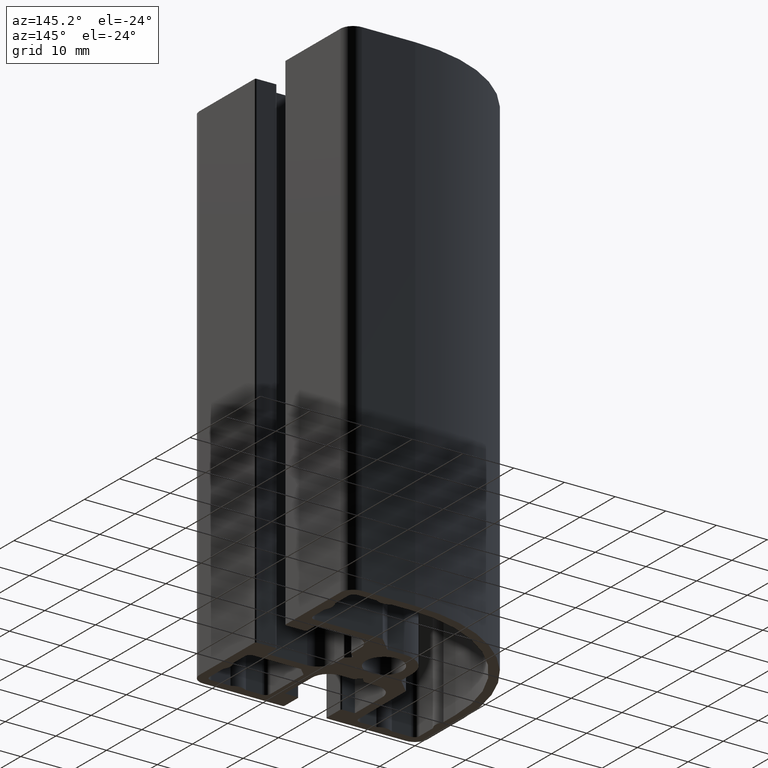
[diagram: clean part render]
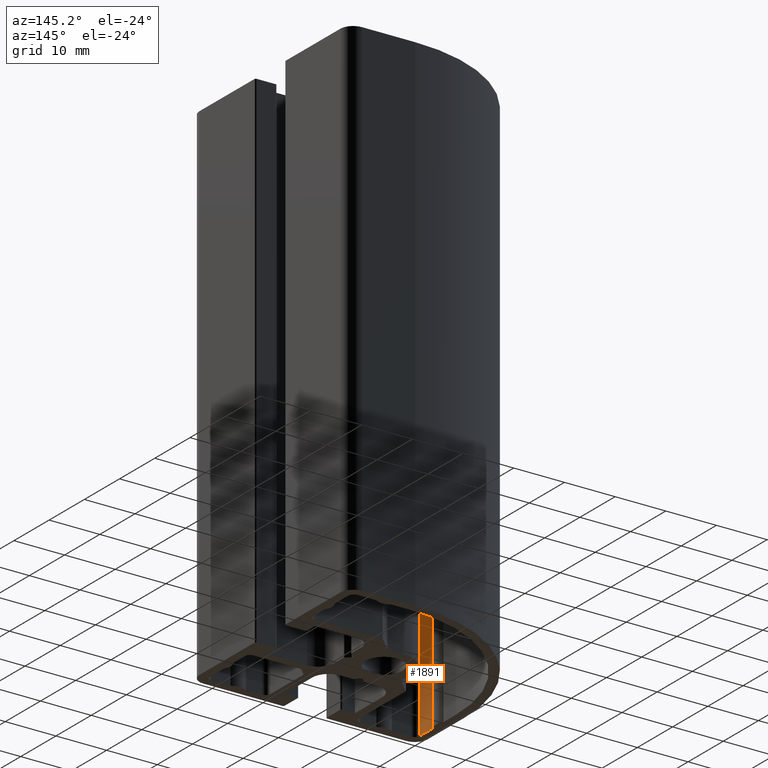
[diagram: same view with one face highlighted and labeled with its STEP entity id]
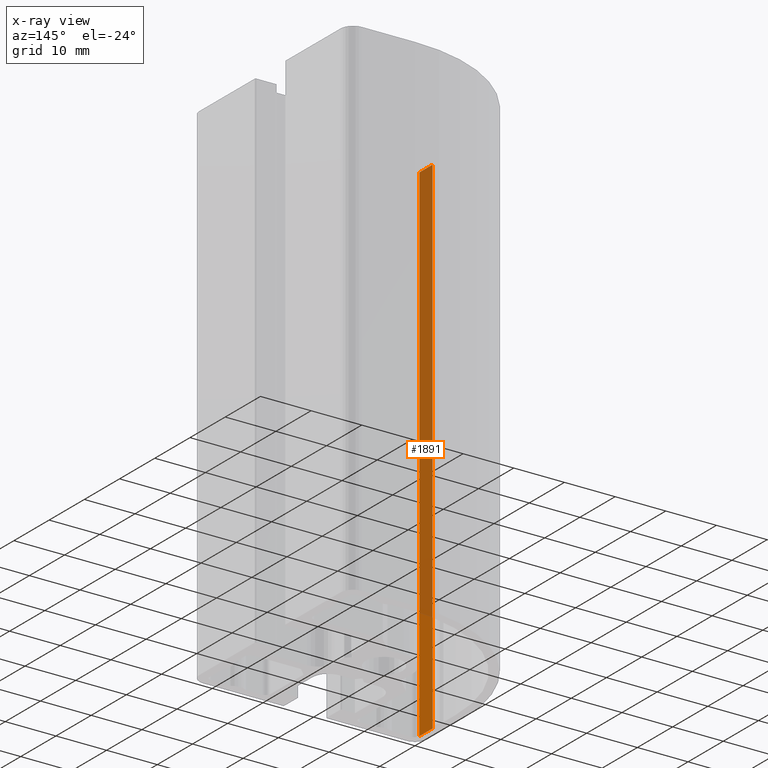
[diagram: x-ray of the same camera — body ghosted, the highlighted face saturated]
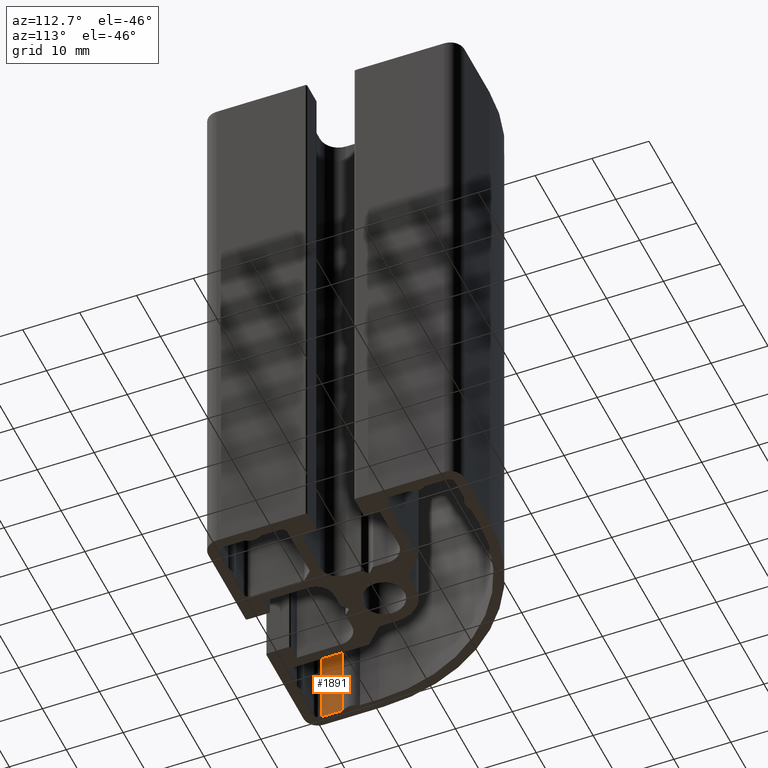
[diagram: same view with one face highlighted and labeled with its STEP entity id]
A machine part, auxiliary view. The second image highlights one B-rep face of the part: STEP entity #1891.
The next image is the same camera in x-ray: the body ghosted, the highlighted face saturated — about 79% of this face is hidden behind the body in this view.
A second angle (auxiliary view) of the same face is appended — the face is thin or edge-on in the first view.
In plain terms, the highlighted planar face has unit normal (-1, 0, 0).
Its self-contained STEP definition (entity closure, byte-faithful):
#30=PLANE('',#2018);
#92=FACE_OUTER_BOUND('',#191,.T.);
#191=EDGE_LOOP('',(#1324,#1325,#1326,#1327));
#313=LINE('',#2888,#503);
#314=LINE('',#2892,#504);
#315=LINE('',#2894,#505);
#316=LINE('',#2895,#506);
#503=VECTOR('',#2301,100.);
#504=VECTOR('',#2306,3.72821757233071);
#505=VECTOR('',#2307,100.);
#506=VECTOR('',#2308,3.72821757233071);
#798=VERTEX_POINT('',#2885);
#799=VERTEX_POINT('',#2887);
#800=VERTEX_POINT('',#2891);
#801=VERTEX_POINT('',#2893);
#1012=EDGE_CURVE('',#799,#798,#313,.T.);
#1014=EDGE_CURVE('',#800,#798,#314,.T.);
#1015=EDGE_CURVE('',#801,#800,#315,.T.);
#1016=EDGE_CURVE('',#799,#801,#316,.T.);
#1324=ORIENTED_EDGE('',*,*,#1014,.F.);
#1325=ORIENTED_EDGE('',*,*,#1015,.F.);
#1326=ORIENTED_EDGE('',*,*,#1016,.F.);
#1327=ORIENTED_EDGE('',*,*,#1012,.T.);
#1891=ADVANCED_FACE('',(#92),#30,.F.);
#2018=AXIS2_PLACEMENT_3D('',#2890,#2304,#2305);
#2301=DIRECTION('',(0.,0.,1.));
#2304=DIRECTION('center_axis',(-1.,2.50142949705084E-13,0.));
#2305=DIRECTION('ref_axis',(-2.50111042987555E-13,-1.,0.));
#2306=DIRECTION('',(2.50142949705084E-13,1.,0.));
#2307=DIRECTION('',(0.,0.,1.));
#2308=DIRECTION('',(-2.50142949705084E-13,-1.,0.));
#2885=CARTESIAN_POINT('',(-20.700000000009,-15.9717824276693,100.));
#2887=CARTESIAN_POINT('',(-20.700000000009,-15.9717824276693,0.));
#2888=CARTESIAN_POINT('',(-20.700000000009,-15.9717824276693,0.));
#2890=CARTESIAN_POINT('Origin',(-20.700000000009,-15.9717824276693,0.));
#2891=CARTESIAN_POINT('',(-20.7000000000099,-19.7,100.));
#2892=CARTESIAN_POINT('',(-20.700000000007,-7.98589121383207,100.));
#2893=CARTESIAN_POINT('',(-20.7000000000099,-19.7,0.));
#2894=CARTESIAN_POINT('',(-20.7000000000099,-19.7,0.));
#2895=CARTESIAN_POINT('',(-20.700000000007,-7.98589121383207,0.));